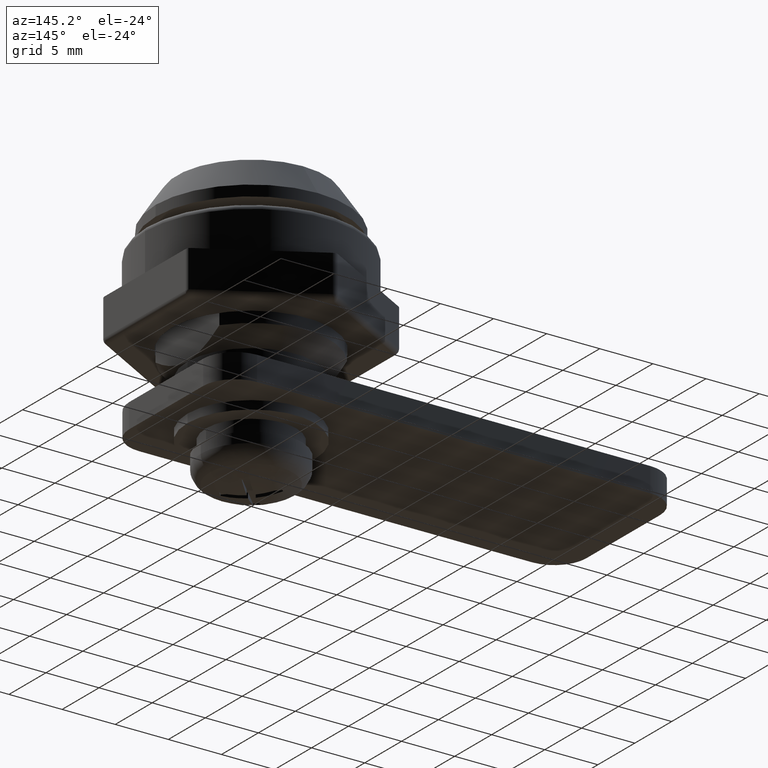
[diagram: clean part render]
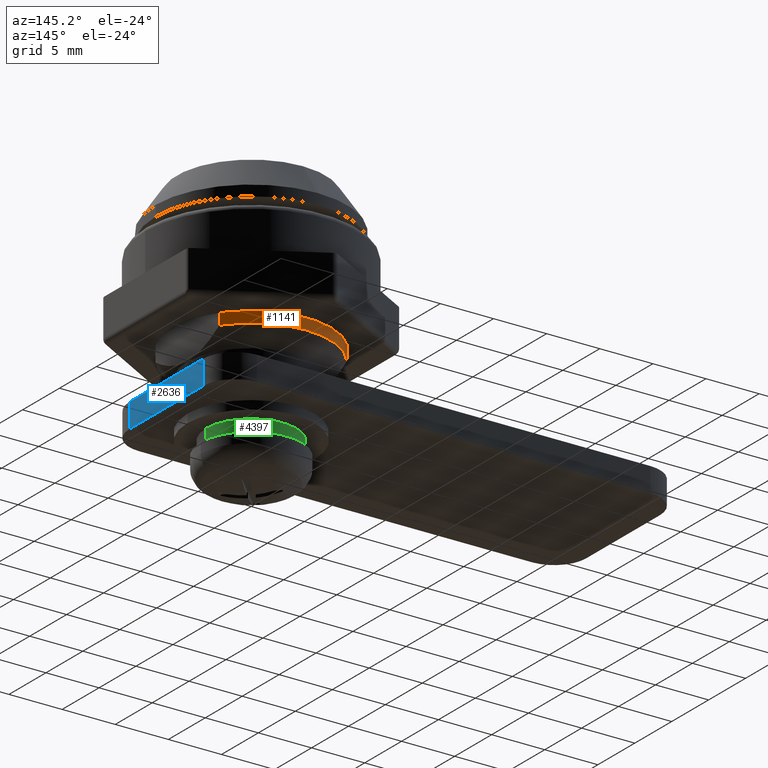
[diagram: same view with three faces highlighted in distinct colors, each labeled with its STEP entity id]
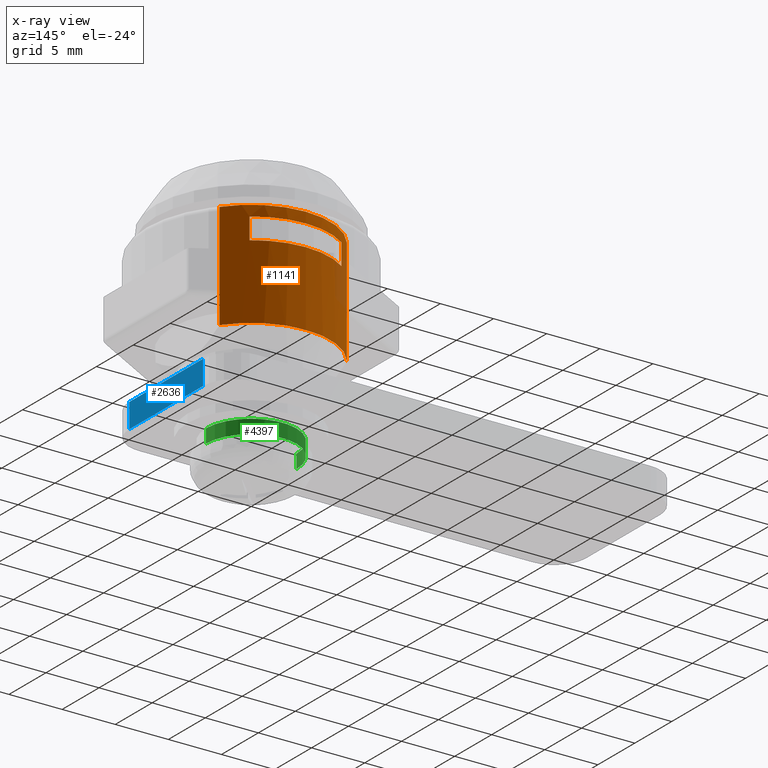
[diagram: x-ray of the same camera — body ghosted, the three highlighted faces saturated]
A machine part, auxiliary view with three faces highlighted in distinct colors.
The next image is the same camera in x-ray (body ghosted, the three faces saturated) — at least one of them is partly hidden behind the body in this view.
Their STEP definitions:

[orange] entity #1141 — the highlighted cylindrical surface (partial cylindrical patch) has radius 7.4 mm, axis along (0, 0, 1).
#98 = VERTEX_POINT ( 'NONE', #2534 ) ;
#133 = DIRECTION ( 'NONE',  ( 1.000000000000000000, 0.0000000000000000000, 0.0000000000000000000 ) ) ;
#263 = EDGE_CURVE ( 'NONE', #1294, #1426, #1076, .T. ) ;
#313 = DIRECTION ( 'NONE',  ( 0.0000000000000000000, 0.0000000000000000000, 1.000000000000000000 ) ) ;
#373 = CARTESIAN_POINT ( 'NONE',  ( 0.0000000000000000000, 0.0000000000000000000, 0.0000000000000000000 ) ) ;
#380 = DIRECTION ( 'NONE',  ( 0.0000000000000000000, 6.195440985631453300E-016, -1.000000000000000000 ) ) ;
#509 = CARTESIAN_POINT ( 'NONE',  ( 4.331281565541543100, 6.000000000000000000, -11.50000000000000000 ) ) ;
#561 = VECTOR ( 'NONE', #313, 1000.000000000000000 ) ;
#653 = AXIS2_PLACEMENT_3D ( 'NONE', #743, #380, #5173 ) ;
#687 = FACE_OUTER_BOUND ( 'NONE', #814, .T. ) ;
#699 = AXIS2_PLACEMENT_3D ( 'NONE', #3699, #1111, #4135 ) ;
#743 = CARTESIAN_POINT ( 'NONE',  ( 0.0000000000000000000, 0.0000000000000000000, -3.000000000000004400 ) ) ;
#814 = EDGE_LOOP ( 'NONE', ( #4675, #5174, #4329, #3941 ) ) ;
#821 = CARTESIAN_POINT ( 'NONE',  ( -4.331281565541543100, 6.000000000000000000, -11.50000000000000000 ) ) ;
#917 = VECTOR ( 'NONE', #1258, 1000.000000000000000 ) ;
#921 = EDGE_CURVE ( 'NONE', #3452, #98, #2805, .T. ) ;
#926 = AXIS2_PLACEMENT_3D ( 'NONE', #1449, #4677, #1079 ) ;
#1028 = EDGE_CURVE ( 'NONE', #2322, #3452, #4557, .T. ) ;
#1076 = CIRCLE ( 'NONE', #653, 7.400000000000000400 ) ;
#1079 = DIRECTION ( 'NONE',  ( -1.000000000000000000, 0.0000000000000000000, 0.0000000000000000000 ) ) ;
#1111 = DIRECTION ( 'NONE',  ( 0.0000000000000000000, -1.548860246407863300E-016, 1.000000000000000000 ) ) ;
#1141 = ADVANCED_FACE ( 'NONE', ( #1714, #687 ), #2745, .T. ) ;
#1168 = CARTESIAN_POINT ( 'NONE',  ( -5.999999999999998200, 4.331281565541544900, -9.999999999999989300 ) ) ;
#1258 = DIRECTION ( 'NONE',  ( 0.0000000000000000000, 0.0000000000000000000, -1.000000000000000000 ) ) ;
#1294 = VERTEX_POINT ( 'NONE', #2474 ) ;
#1426 = VERTEX_POINT ( 'NONE', #1810 ) ;
#1427 = CARTESIAN_POINT ( 'NONE',  ( 0.0000000000000000000, 0.0000000000000000000, -11.50000000000000000 ) ) ;
#1449 = CARTESIAN_POINT ( 'NONE',  ( 0.0000000000000000000, 0.0000000000000000000, -9.999999999999989300 ) ) ;
#1553 = LINE ( 'NONE', #2903, #561 ) ;
#1591 = EDGE_CURVE ( 'NONE', #98, #4954, #1992, .T. ) ;
#1606 = EDGE_CURVE ( 'NONE', #1426, #5010, #5337, .T. ) ;
#1714 = FACE_BOUND ( 'NONE', #2531, .T. ) ;
#1764 = CARTESIAN_POINT ( 'NONE',  ( -4.331281565541543100, 6.000000000000000000, -1.000000000000000400 ) ) ;
#1810 = CARTESIAN_POINT ( 'NONE',  ( 4.331281565541543100, 6.000000000000000000, -3.000000000000000900 ) ) ;
#1832 = ORIENTED_EDGE ( 'NONE', *, *, #1606, .T. ) ;
#1859 = VECTOR ( 'NONE', #3542, 1000.000000000000000 ) ;
#1883 = DIRECTION ( 'NONE',  ( -0.0000000000000000000, -0.0000000000000000000, 1.000000000000000000 ) ) ;
#1992 = CIRCLE ( 'NONE', #2233, 7.400000000000000400 ) ;
#2120 = CARTESIAN_POINT ( 'NONE',  ( 5.999999999999998200, 4.331281565541544900, -9.999999999999989300 ) ) ;
#2137 = ORIENTED_EDGE ( 'NONE', *, *, #263, .T. ) ;
#2233 = AXIS2_PLACEMENT_3D ( 'NONE', #373, #2307, #2294 ) ;
#2294 = DIRECTION ( 'NONE',  ( 1.000000000000000000, 0.0000000000000000000, 0.0000000000000000000 ) ) ;
#2307 = DIRECTION ( 'NONE',  ( -0.0000000000000000000, -0.0000000000000000000, -1.000000000000000000 ) ) ;
#2322 = VERTEX_POINT ( 'NONE', #2120 ) ;
#2474 = CARTESIAN_POINT ( 'NONE',  ( -4.331281565541543100, 6.000000000000000000, -3.000000000000000900 ) ) ;
#2531 = EDGE_LOOP ( 'NONE', ( #2137, #1832, #5018, #5041 ) ) ;
#2534 = CARTESIAN_POINT ( 'NONE',  ( -5.999999999999998200, 4.331281565541544900, 0.0000000000000000000 ) ) ;
#2578 = CARTESIAN_POINT ( 'NONE',  ( 5.999999999999998200, 4.331281565541544900, 0.0000000000000000000 ) ) ;
#2621 = CARTESIAN_POINT ( 'NONE',  ( 4.331281565541543100, 6.000000000000000000, -1.000000000000000400 ) ) ;
#2745 = CYLINDRICAL_SURFACE ( 'NONE', #4108, 7.400000000000000400 ) ;
#2805 = LINE ( 'NONE', #5368, #3963 ) ;
#2809 = DIRECTION ( 'NONE',  ( 0.0000000000000000000, 0.0000000000000000000, 1.000000000000000000 ) ) ;
#2903 = CARTESIAN_POINT ( 'NONE',  ( 5.999999999999998200, 4.331281565541544900, -11.50099999999999900 ) ) ;
#2960 = EDGE_CURVE ( 'NONE', #5010, #4274, #5605, .T. ) ;
#3150 = EDGE_CURVE ( 'NONE', #4274, #1294, #4373, .T. ) ;
#3452 = VERTEX_POINT ( 'NONE', #1168 ) ;
#3542 = DIRECTION ( 'NONE',  ( -0.0000000000000000000, -0.0000000000000000000, 1.000000000000000000 ) ) ;
#3699 = CARTESIAN_POINT ( 'NONE',  ( 0.0000000000000000000, 0.0000000000000000000, -1.000000000000002700 ) ) ;
#3941 = ORIENTED_EDGE ( 'NONE', *, *, #1591, .T. ) ;
#3963 = VECTOR ( 'NONE', #2809, 1000.000000000000000 ) ;
#4108 = AXIS2_PLACEMENT_3D ( 'NONE', #1427, #1883, #133 ) ;
#4135 = DIRECTION ( 'NONE',  ( 0.0000000000000000000, -1.000000000000000000, -1.465138070926357200E-016 ) ) ;
#4274 = VERTEX_POINT ( 'NONE', #1764 ) ;
#4329 = ORIENTED_EDGE ( 'NONE', *, *, #921, .T. ) ;
#4373 = LINE ( 'NONE', #821, #917 ) ;
#4557 = CIRCLE ( 'NONE', #926, 7.400000000000000400 ) ;
#4675 = ORIENTED_EDGE ( 'NONE', *, *, #5607, .F. ) ;
#4677 = DIRECTION ( 'NONE',  ( 0.0000000000000000000, 0.0000000000000000000, 1.000000000000000000 ) ) ;
#4954 = VERTEX_POINT ( 'NONE', #2578 ) ;
#5010 = VERTEX_POINT ( 'NONE', #2621 ) ;
#5018 = ORIENTED_EDGE ( 'NONE', *, *, #2960, .T. ) ;
#5041 = ORIENTED_EDGE ( 'NONE', *, *, #3150, .T. ) ;
#5173 = DIRECTION ( 'NONE',  ( 0.0000000000000000000, 1.000000000000000000, 6.446607512075972200E-016 ) ) ;
#5174 = ORIENTED_EDGE ( 'NONE', *, *, #1028, .T. ) ;
#5337 = LINE ( 'NONE', #509, #1859 ) ;
#5368 = CARTESIAN_POINT ( 'NONE',  ( -5.999999999999998200, 4.331281565541544900, -11.50099999999999900 ) ) ;
#5605 = CIRCLE ( 'NONE', #699, 7.400000000000000400 ) ;
#5607 = EDGE_CURVE ( 'NONE', #2322, #4954, #1553, .T. ) ;

[blue] entity #2636 — the highlighted planar face has unit normal (-1, 0, 0).
#9 = ORIENTED_EDGE ( 'NONE', *, *, #115, .T. ) ;
#115 = EDGE_CURVE ( 'NONE', #3868, #5334, #2898, .T. ) ;
#278 = CARTESIAN_POINT ( 'NONE',  ( 8.000000000000000000, 8.000000000000000000, -1.149999999999999900 ) ) ;
#470 = DIRECTION ( 'NONE',  ( 0.0000000000000000000, 0.0000000000000000000, 1.000000000000000000 ) ) ;
#521 = DIRECTION ( 'NONE',  ( 0.0000000000000000000, -1.000000000000000000, 0.0000000000000000000 ) ) ;
#593 = VECTOR ( 'NONE', #521, 1000.000000000000000 ) ;
#885 = CARTESIAN_POINT ( 'NONE',  ( 8.000000000000000000, 5.000000000000000000, -1.149999999999999900 ) ) ;
#1147 = PLANE ( 'NONE',  #4109 ) ;
#1610 = VECTOR ( 'NONE', #470, 1000.000000000000000 ) ;
#1839 = VERTEX_POINT ( 'NONE', #4195 ) ;
#1957 = ORIENTED_EDGE ( 'NONE', *, *, #5289, .F. ) ;
#2033 = DIRECTION ( 'NONE',  ( 0.0000000000000000000, 0.0000000000000000000, 1.000000000000000000 ) ) ;
#2636 = ADVANCED_FACE ( 'NONE', ( #3496 ), #1147, .F. ) ;
#2898 = LINE ( 'NONE', #885, #1610 ) ;
#2900 = ORIENTED_EDGE ( 'NONE', *, *, #4037, .T. ) ;
#3333 = DIRECTION ( 'NONE',  ( 0.0000000000000000000, -1.000000000000000000, 0.0000000000000000000 ) ) ;
#3496 = FACE_OUTER_BOUND ( 'NONE', #5332, .T. ) ;
#3556 = CARTESIAN_POINT ( 'NONE',  ( 8.000000000000000000, 8.000000000000000000, -1.149999999999999900 ) ) ;
#3796 = ORIENTED_EDGE ( 'NONE', *, *, #4501, .T. ) ;
#3868 = VERTEX_POINT ( 'NONE', #4982 ) ;
#3909 = LINE ( 'NONE', #3556, #593 ) ;
#4037 = EDGE_CURVE ( 'NONE', #5334, #1839, #5552, .T. ) ;
#4085 = CARTESIAN_POINT ( 'NONE',  ( 8.000000000000000000, -5.000000000000000000, -1.149999999999999900 ) ) ;
#4109 = AXIS2_PLACEMENT_3D ( 'NONE', #278, #4619, #2033 ) ;
#4195 = CARTESIAN_POINT ( 'NONE',  ( 8.000000000000000000, -5.000000000000000900, 1.149999999999999900 ) ) ;
#4252 = LINE ( 'NONE', #4085, #5290 ) ;
#4401 = VECTOR ( 'NONE', #3333, 1000.000000000000000 ) ;
#4459 = CARTESIAN_POINT ( 'NONE',  ( 8.000000000000000000, 5.000000000000000000, 1.149999999999999900 ) ) ;
#4501 = EDGE_CURVE ( 'NONE', #1839, #5336, #4252, .T. ) ;
#4619 = DIRECTION ( 'NONE',  ( -1.000000000000000000, 0.0000000000000000000, 0.0000000000000000000 ) ) ;
#4967 = DIRECTION ( 'NONE',  ( -0.0000000000000000000, 0.0000000000000000000, -1.000000000000000000 ) ) ;
#4982 = CARTESIAN_POINT ( 'NONE',  ( 8.000000000000000000, 5.000000000000000000, -1.149999999999999900 ) ) ;
#5067 = CARTESIAN_POINT ( 'NONE',  ( 8.000000000000000000, 8.000000000000000000, 1.149999999999999900 ) ) ;
#5289 = EDGE_CURVE ( 'NONE', #3868, #5336, #3909, .T. ) ;
#5290 = VECTOR ( 'NONE', #4967, 1000.000000000000000 ) ;
#5332 = EDGE_LOOP ( 'NONE', ( #2900, #3796, #1957, #9 ) ) ;
#5334 = VERTEX_POINT ( 'NONE', #4459 ) ;
#5336 = VERTEX_POINT ( 'NONE', #5353 ) ;
#5353 = CARTESIAN_POINT ( 'NONE',  ( 8.000000000000000000, -5.000000000000000900, -1.149999999999999900 ) ) ;
#5552 = LINE ( 'NONE', #5067, #4401 ) ;

[green] entity #4397 — the highlighted cylindrical surface (partial cylindrical patch) has radius 4.25 mm, axis along (-0, -0, -1).
#182 = FACE_OUTER_BOUND ( 'NONE', #1495, .T. ) ;
#219 = CIRCLE ( 'NONE', #5405, 4.250000000000000000 ) ;
#304 = CARTESIAN_POINT ( 'NONE',  ( -4.250000000000000000, 0.0000000000000000000, 0.0000000000000000000 ) ) ;
#582 = DIRECTION ( 'NONE',  ( -0.0000000000000000000, -0.0000000000000000000, -1.000000000000000000 ) ) ;
#815 = EDGE_CURVE ( 'NONE', #1094, #4560, #4371, .T. ) ;
#967 = EDGE_CURVE ( 'NONE', #1554, #4031, #219, .T. ) ;
#1094 = VERTEX_POINT ( 'NONE', #3254 ) ;
#1095 = DIRECTION ( 'NONE',  ( 0.0000000000000000000, 0.0000000000000000000, 1.000000000000000000 ) ) ;
#1276 = ORIENTED_EDGE ( 'NONE', *, *, #2601, .F. ) ;
#1281 = DIRECTION ( 'NONE',  ( -0.0000000000000000000, -0.0000000000000000000, -1.000000000000000000 ) ) ;
#1320 = AXIS2_PLACEMENT_3D ( 'NONE', #4120, #1095, #4490 ) ;
#1335 = LINE ( 'NONE', #3017, #1942 ) ;
#1495 = EDGE_LOOP ( 'NONE', ( #4189, #1769, #2062, #1276 ) ) ;
#1554 = VERTEX_POINT ( 'NONE', #2549 ) ;
#1769 = ORIENTED_EDGE ( 'NONE', *, *, #4962, .T. ) ;
#1881 = CARTESIAN_POINT ( 'NONE',  ( 0.0000000000000000000, 0.0000000000000000000, 1.300000000000000000 ) ) ;
#1942 = VECTOR ( 'NONE', #1281, 1000.000000000000000 ) ;
#1986 = CARTESIAN_POINT ( 'NONE',  ( -4.250000000000000000, 0.0000000000000000000, 1.300000000000000000 ) ) ;
#2062 = ORIENTED_EDGE ( 'NONE', *, *, #967, .T. ) ;
#2347 = LINE ( 'NONE', #3607, #4504 ) ;
#2356 = CYLINDRICAL_SURFACE ( 'NONE', #4756, 4.250000000000000000 ) ;
#2549 = CARTESIAN_POINT ( 'NONE',  ( 4.250000000000000000, 5.204748896376250700E-016, 0.0000000000000000000 ) ) ;
#2601 = EDGE_CURVE ( 'NONE', #4560, #4031, #2347, .T. ) ;
#3017 = CARTESIAN_POINT ( 'NONE',  ( 4.250000000000000000, 5.204748896376250700E-016, 1.300000000000000000 ) ) ;
#3207 = DIRECTION ( 'NONE',  ( -1.000000000000000000, 0.0000000000000000000, 0.0000000000000000000 ) ) ;
#3254 = CARTESIAN_POINT ( 'NONE',  ( 4.250000000000000000, 5.204748896376250700E-016, 1.300000000000000000 ) ) ;
#3352 = CARTESIAN_POINT ( 'NONE',  ( 0.0000000000000000000, 0.0000000000000000000, 0.0000000000000000000 ) ) ;
#3607 = CARTESIAN_POINT ( 'NONE',  ( -4.250000000000000000, 0.0000000000000000000, 1.300000000000000000 ) ) ;
#4031 = VERTEX_POINT ( 'NONE', #304 ) ;
#4120 = CARTESIAN_POINT ( 'NONE',  ( 0.0000000000000000000, 0.0000000000000000000, 1.300000000000000000 ) ) ;
#4189 = ORIENTED_EDGE ( 'NONE', *, *, #815, .F. ) ;
#4371 = CIRCLE ( 'NONE', #1320, 4.250000000000000000 ) ;
#4397 = ADVANCED_FACE ( 'NONE', ( #182 ), #2356, .T. ) ;
#4490 = DIRECTION ( 'NONE',  ( 1.000000000000000000, 0.0000000000000000000, 0.0000000000000000000 ) ) ;
#4504 = VECTOR ( 'NONE', #4597, 1000.000000000000000 ) ;
#4560 = VERTEX_POINT ( 'NONE', #1986 ) ;
#4597 = DIRECTION ( 'NONE',  ( -0.0000000000000000000, -0.0000000000000000000, -1.000000000000000000 ) ) ;
#4756 = AXIS2_PLACEMENT_3D ( 'NONE', #1881, #582, #4926 ) ;
#4926 = DIRECTION ( 'NONE',  ( -1.000000000000000000, 0.0000000000000000000, 0.0000000000000000000 ) ) ;
#4962 = EDGE_CURVE ( 'NONE', #1094, #1554, #1335, .T. ) ;
#5405 = AXIS2_PLACEMENT_3D ( 'NONE', #3352, #5544, #3207 ) ;
#5544 = DIRECTION ( 'NONE',  ( -0.0000000000000000000, -0.0000000000000000000, 1.000000000000000000 ) ) ;